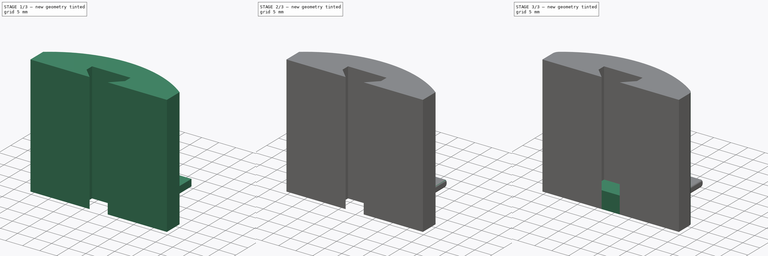
[diagram: build sequence overview — one tinted view per stage of 3, left to right]
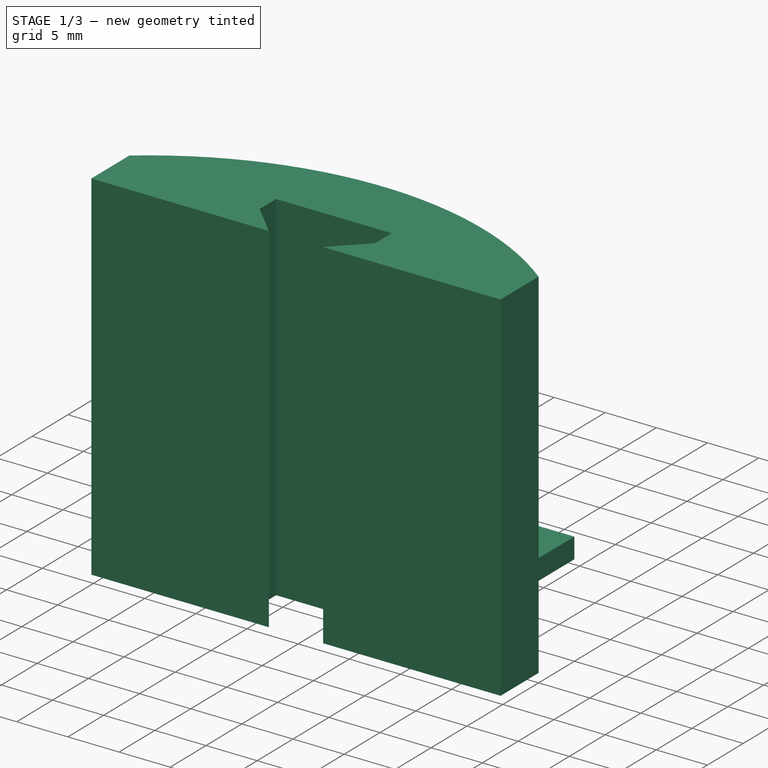
[diagram: stage 1 of 3 — iso view after this stage's code; geometry added in this stage tinted green]
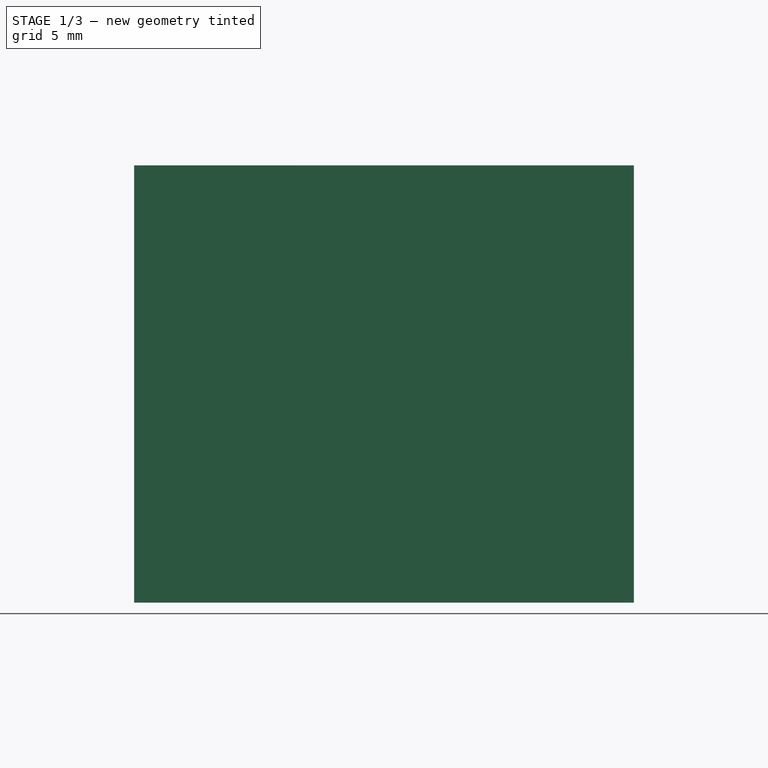
[diagram: stage 1 of 3 — front view after this stage's code; geometry added in this stage tinted green]
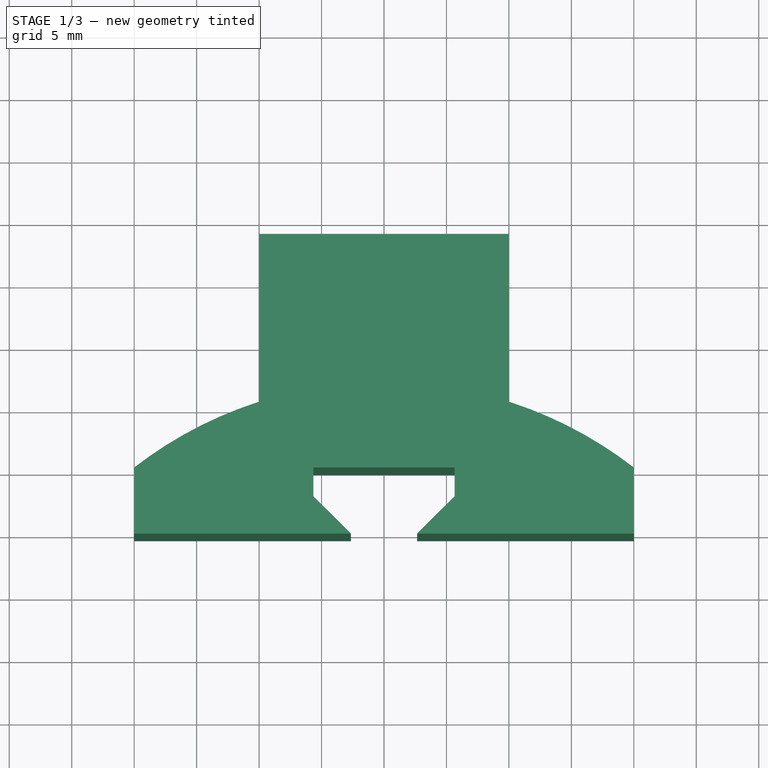
[diagram: stage 1 of 3 — top view after this stage's code; geometry added in this stage tinted green]
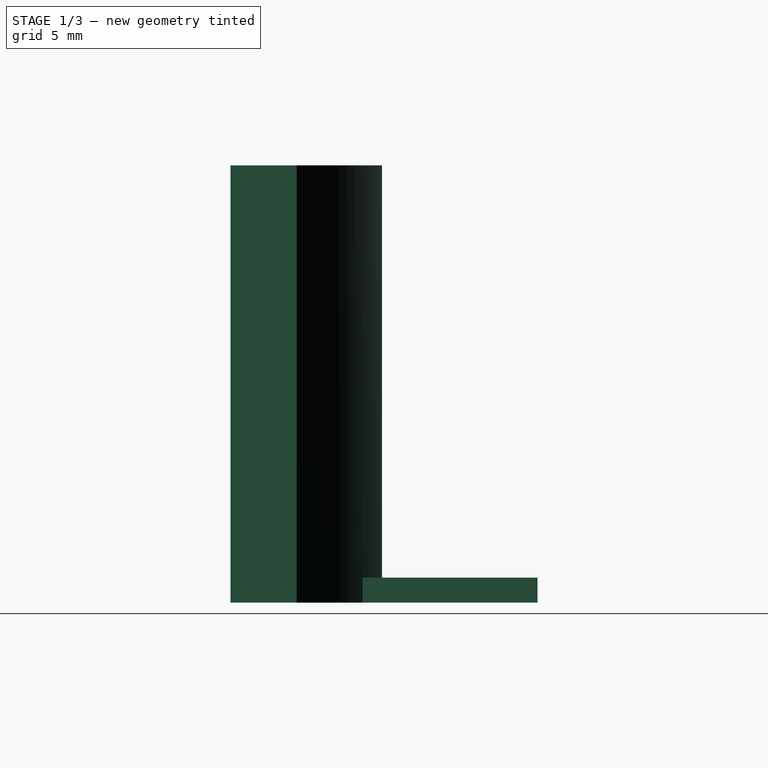
[diagram: stage 1 of 3 — right view after this stage's code; geometry added in this stage tinted green]
FCSTD DOCUMENT  (FreeCAD 0.18R4 (GitTag))
Label: Soporte
License: All rights reserved
LicenseURL: http://en.wikipedia.org/wiki/All_rights_reserved
objects: Sketcher::SketchObject×3, PartDesign::Pad×3, PartDesign::Fillet×3, PartDesign::Body×1
note: 13 computed .brp shape members not serialized (recipe doc carries the construction recipe); baked Part::Feature solids carry a one-line shape summary decoded from their .brp

FEATURE [Sketcher::SketchObject] Sketch
  MapMode = 5
  Support = -> [XY_Plane]
  sketch-geometry (16):
    g0: ArcOfCircle CenterX=3.7294e-12 CenterY=-25.8394 CenterZ=0 NormalX=0 NormalY=0 NormalZ=1 AngleXU=0 Radius=32.6753 StartAngle=0.912103 EndAngle=2.22949
    g1: LineSegment StartX=20 StartY=2.8919e-12 StartZ=0 EndX=20 EndY=-5.3 EndZ=0
    g2: LineSegment StartX=20 StartY=-5.3 StartZ=0 EndX=5.65 EndY=-5.3 EndZ=0
    g3: LineSegment StartX=-20 StartY=-5.3 StartZ=0 EndX=-20 EndY=-2.8857e-12 EndZ=0
    g4: LineSegment StartX=-5.65 StartY=8.145e-13 StartZ=0 EndX=5.65 EndY=8.147e-13 EndZ=0
    g5: LineSegment StartX=5.65 StartY=8.147e-13 StartZ=0 EndX=5.65 EndY=-5.3 EndZ=0
    g6: LineSegment StartX=-5.65 StartY=-5.3 StartZ=0 EndX=-5.65 EndY=8.145e-13 EndZ=0
    g7: LineSegment StartX=-5.65 StartY=-5.3 StartZ=0 EndX=-20 EndY=-5.3 EndZ=0
    g8: LineSegment StartX=-2.65 StartY=-5.3 StartZ=0 EndX=-5.65 EndY=-2.3 EndZ=0
    g9: LineSegment StartX=-5.65 StartY=-2.3 StartZ=0 EndX=-5.65 EndY=-5.3 EndZ=0
    g10: LineSegment StartX=-5.65 StartY=-5.3 StartZ=0 EndX=-2.65 EndY=-5.3 EndZ=0
    g11: Circle [constr] CenterX=-4.15 CenterY=-3.8 CenterZ=0 NormalX=0 NormalY=0 NormalZ=1 AngleXU=0 Radius=2.12132
    g12: LineSegment StartX=5.65 StartY=-5.3 StartZ=0 EndX=5.65 EndY=-2.3 EndZ=0
    g13: LineSegment StartX=5.65 StartY=-2.3 StartZ=0 EndX=2.65 EndY=-5.3 EndZ=0
    g14: LineSegment StartX=2.65 StartY=-5.3 StartZ=0 EndX=5.65 EndY=-5.3 EndZ=0
    g15: Circle [constr] CenterX=4.15 CenterY=-3.8 CenterZ=0 NormalX=0 NormalY=0 NormalZ=1 AngleXU=0 Radius=2.12132
  constraints (43):
    c: Symmetric(g0,g0,g-1)
    c: Distance(g0,g0) = 40
    c: Coincident(g1,g2)
    c: Coincident(g7,g3)
    c: Vertical(g1)
    c: Vertical(g3)
    c: Distance(g3) = 5.3
    c: Coincident(g4,g5)
    c: Coincident(g6,g4)
    c: Vertical(g5)
    c: Symmetric(g4,g4,g-2)
    c: Distance(g4) = 11.3
    c: Coincident(g2,g5)
    c: Tangent(g2,g7)
    c: Coincident(g0,g3)
    c: Equal(g2,g7)
    c: Coincident(g7,g6)
    c: Equal(g1,g3)
    c: Equal(g3,g6)
    c: Equal(g6,g5)
    c: Coincident(g8,g9)
    c: Coincident(g9,g10)
    c: Coincident(g10,g8)
    c: PointOnObject(g8,g11)
    c: PointOnObject(g9,g11)
    c: PointOnObject(g10,g11)
    c: Equal(g9,g10)
    c: Angle(g10,g9) = 1.5708
    c: Distance(g9) = 3
    c: Horizontal(g10)
    c: Coincident(g9,g6)
    c: Coincident(g12,g13)
    c: Coincident(g13,g14)
    c: Coincident(g14,g12)
    c: Equal(g12,g14)
    c: PointOnObject(g12,g15)
    c: PointOnObject(g13,g15)
    c: PointOnObject(g14,g15)
    c: Angle(g12,g14) = 1.5708
    c: Coincident(g12,g2)
    c: Horizontal(g14)
    c: Equal(g14,g10)
    c: Coincident(g0,g1)
FEATURE [PartDesign::Pad] Pad
  Length = 35
  Length2 = 100
  Profile = -> Sketch
  Type = 0
FEATURE [Sketcher::SketchObject] Sketch001
  ExternalGeometry = -> [Pad]
  MapMode = 5
  Placement = pos=(0,0,0) rot=(1,0,0;3.14159rad)
  Support = -> [Pad]
  sketch-geometry (5):
    g0: LineSegment StartX=-10 StartY=-4.27512 StartZ=0 EndX=10 EndY=-4.27512 EndZ=0
    g1: LineSegment StartX=10 StartY=-4.27512 StartZ=0 EndX=10 EndY=-19.2751 EndZ=0
    g2: LineSegment StartX=10 StartY=-19.2751 StartZ=0 EndX=-10 EndY=-19.2751 EndZ=0
    g3: LineSegment StartX=-10 StartY=-19.2751 StartZ=0 EndX=-10 EndY=-4.27512 EndZ=0
    g4: GeomPoint X=0.006199 Y=-6.87158 Z=0
  constraints (10):
    c: Coincident(g0,g1)
    c: Coincident(g1,g2)
    c: Coincident(g2,g3)
    c: Coincident(g3,g0)
    c: Horizontal(g2)
    c: Vertical(g1)
    c: Vertical(g3)
    c: Symmetric(g0,g0,g-2)
    c: Distance(g3) = 15
    c: Distance(g0) = 20
FEATURE [PartDesign::Pad] Pad001
  BaseFeature = -> Pad
  Length = 2
  Length2 = 100
  Profile = -> Sketch001
  Reversed = true
  Type = 0
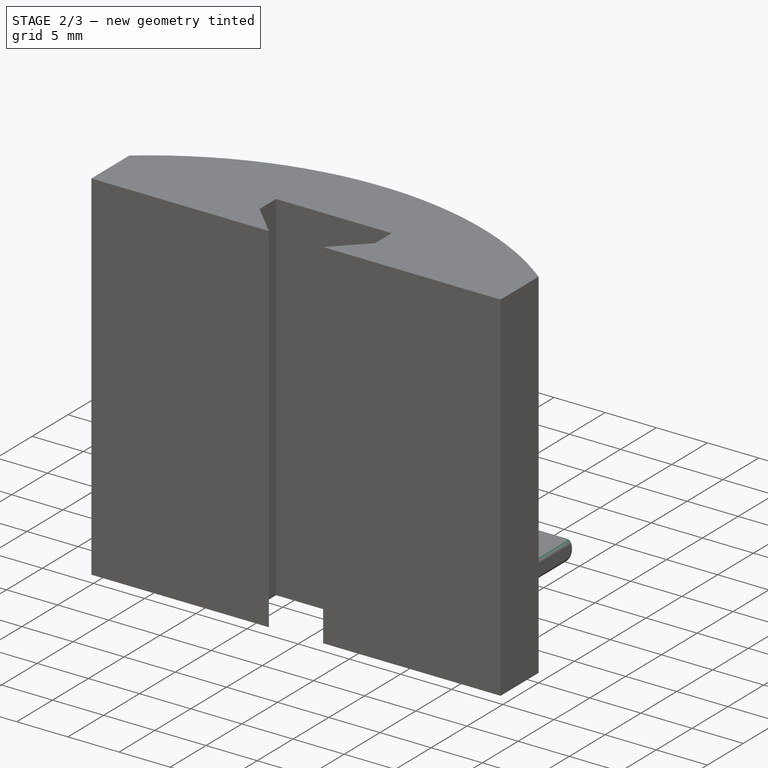
[diagram: stage 2 of 3 — iso view after this stage's code; geometry added in this stage tinted green]
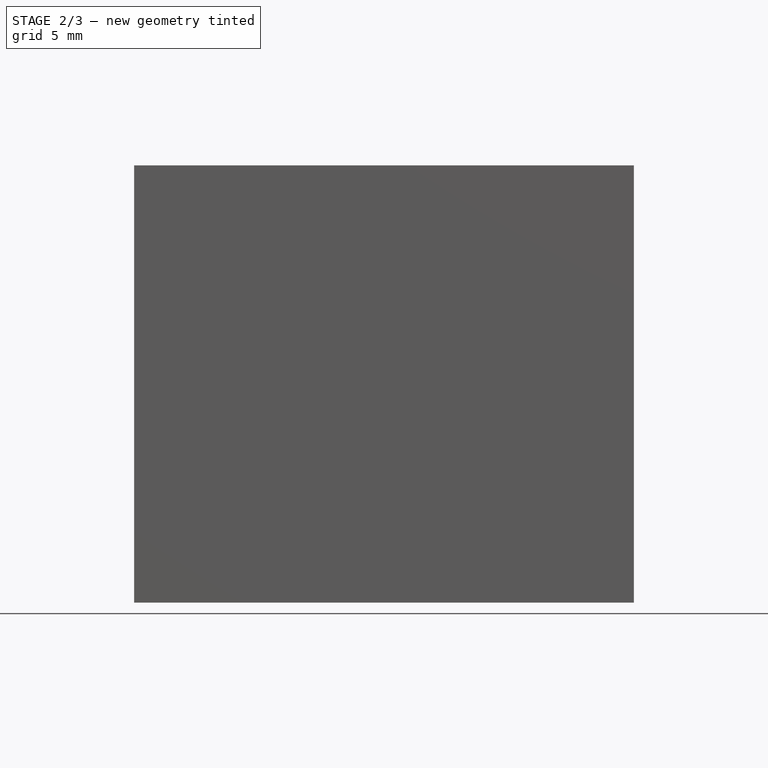
[diagram: stage 2 of 3 — front view after this stage's code; geometry added in this stage tinted green]
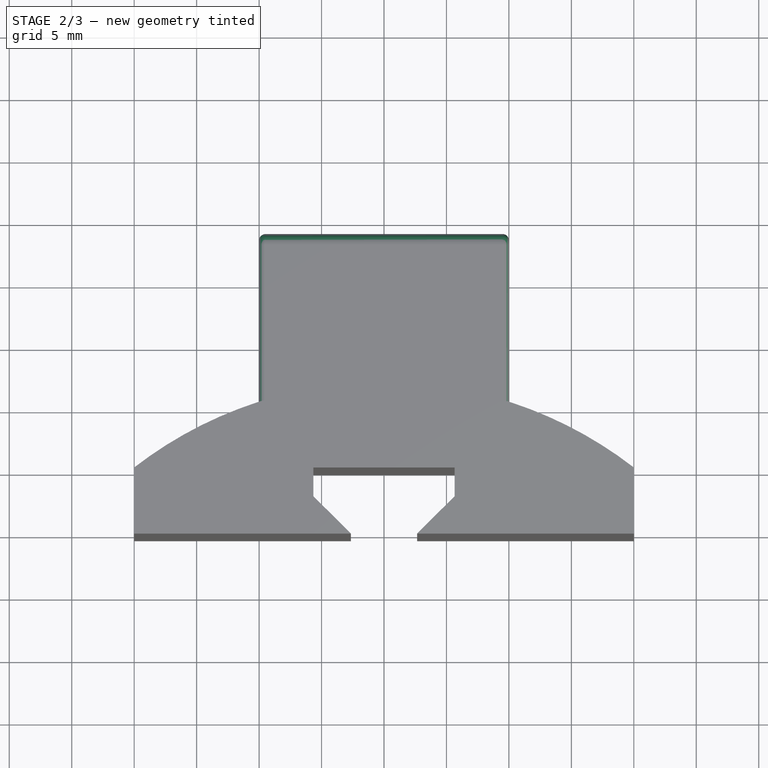
[diagram: stage 2 of 3 — top view after this stage's code; geometry added in this stage tinted green]
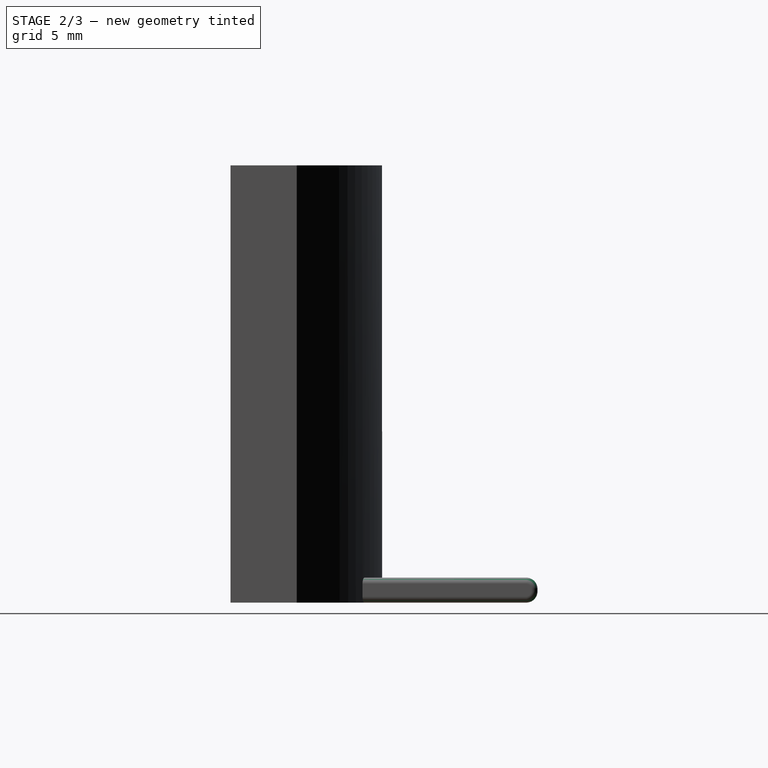
[diagram: stage 2 of 3 — right view after this stage's code; geometry added in this stage tinted green]
FEATURE [PartDesign::Fillet] Fillet
  Base = -> Pad001 [Edge52,Edge49]
  BaseFeature = -> Pad001
  Radius = 0.9
FEATURE [PartDesign::Fillet] Fillet001
  Base = -> Fillet [Edge4,Edge20]
  BaseFeature = -> Fillet
  Radius = 0.5
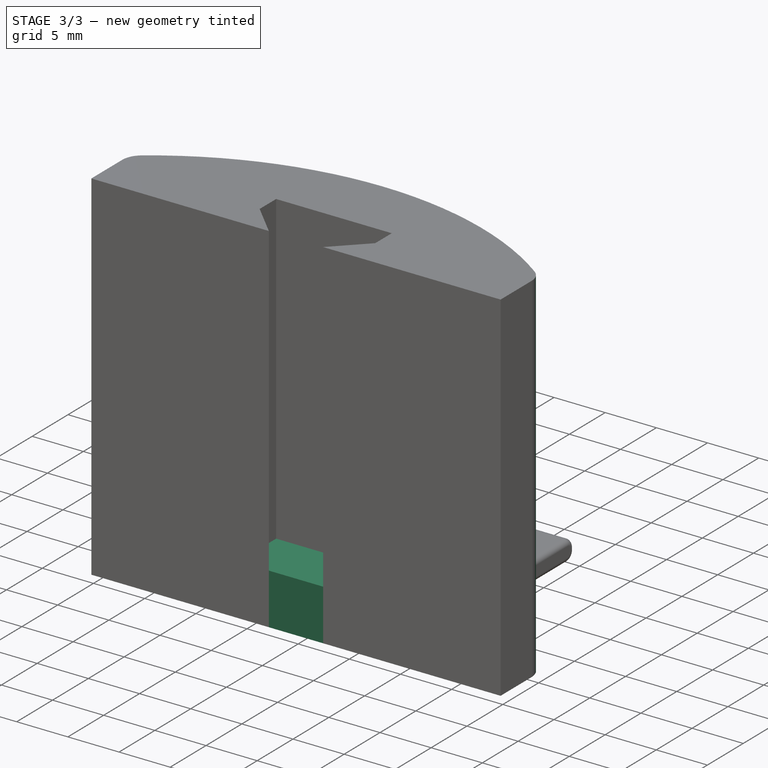
[diagram: stage 3 of 3 — iso view after this stage's code; geometry added in this stage tinted green]
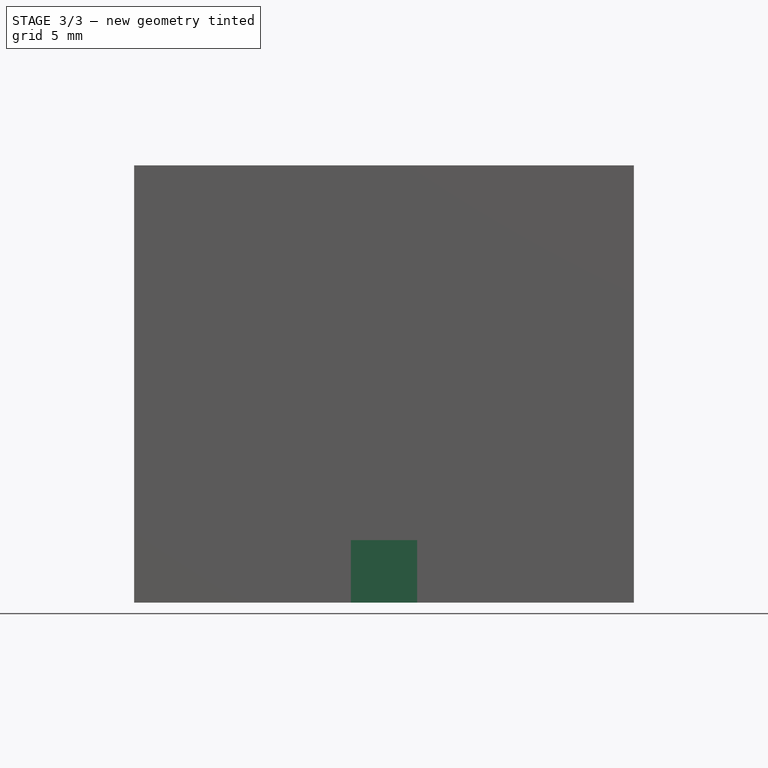
[diagram: stage 3 of 3 — front view after this stage's code; geometry added in this stage tinted green]
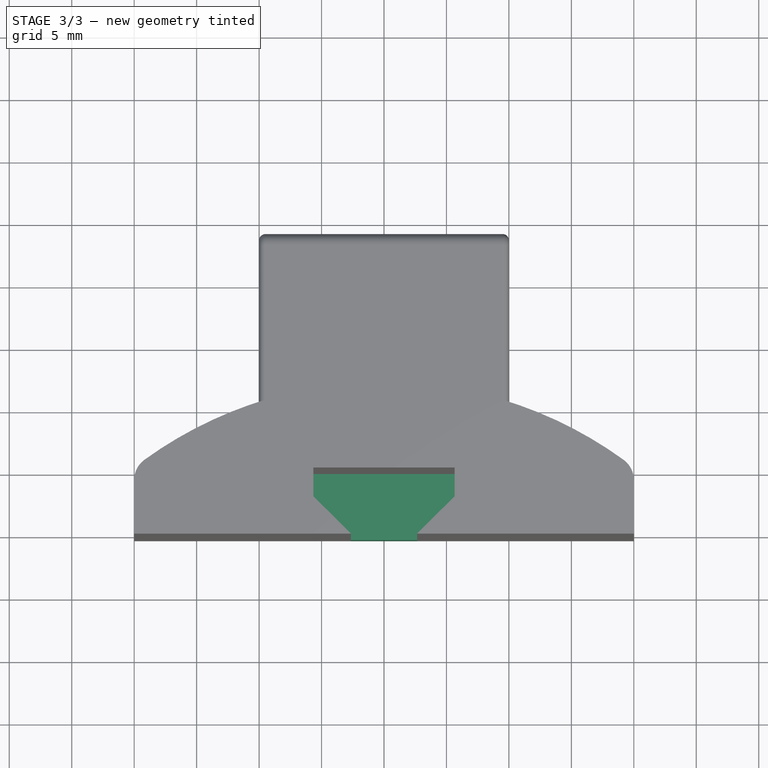
[diagram: stage 3 of 3 — top view after this stage's code; geometry added in this stage tinted green]
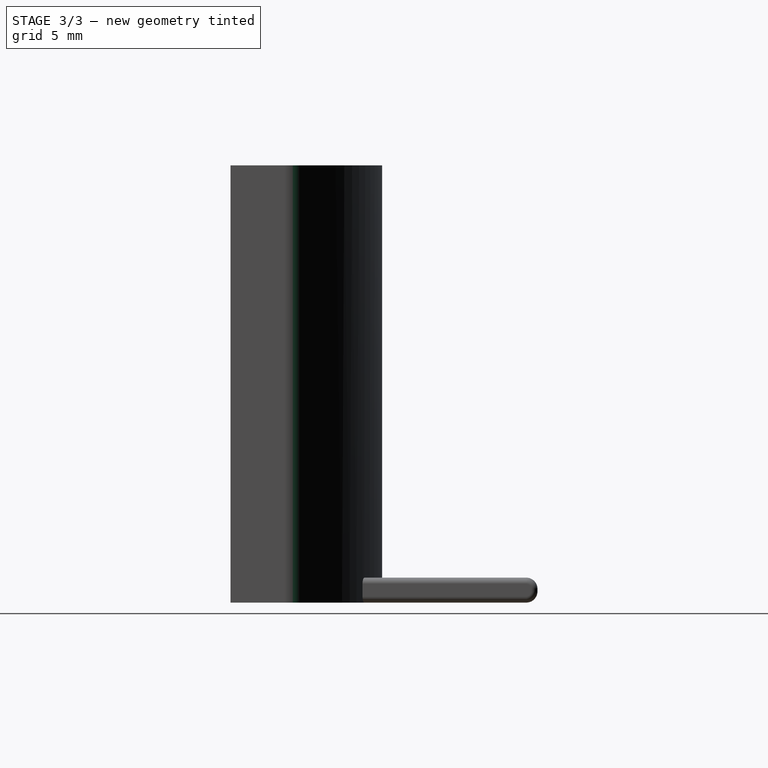
[diagram: stage 3 of 3 — right view after this stage's code; geometry added in this stage tinted green]
FEATURE [PartDesign::Fillet] Fillet002
  Base = -> Fillet001 [Edge15,Edge19]
  BaseFeature = -> Fillet001
  Radius = 2
FEATURE [Sketcher::SketchObject] Sketch002
  MapMode = 5
  Placement = pos=(7.643e-13,-5.3,0) rot=(1,0,0;1.5708rad)
  Support = -> [Fillet002]
  sketch-geometry (4):
    g0: LineSegment StartX=-8.02977 StartY=5 StartZ=0 EndX=8.02977 EndY=5 EndZ=0
    g1: LineSegment StartX=8.02977 StartY=5 StartZ=0 EndX=8.02977 EndY=0 EndZ=0
    g2: LineSegment StartX=8.02977 StartY=0 StartZ=0 EndX=-8.02977 EndY=-7e-16 EndZ=0
    g3: LineSegment StartX=-8.02977 StartY=-7e-16 StartZ=0 EndX=-8.02977 EndY=5 EndZ=0
  constraints (10):
    c: Coincident(g0,g1)
    c: Coincident(g1,g2)
    c: Coincident(g2,g3)
    c: Coincident(g3,g0)
    c: Vertical(g1)
    c: Vertical(g3)
    c: Symmetric(g0,g0,g-2)
    c: Equal(g3,g1)
    c: Distance(g3) = 5
    c: PointOnObject(g1,g-1)
FEATURE [PartDesign::Pad] Pad002
  BaseFeature = -> Fillet002
  Length = 10
  Length2 = 100
  Profile = -> Sketch002
  Reversed = true
  Type = 0
FEATURE [PartDesign::Body] Body
  Group = -> [Sketch,Pad,Sketch001,Pad001,Fillet,Fillet001,Fillet002,Sketch002,Pad002]
  Origin = -> Origin
  Tip = -> Pad002
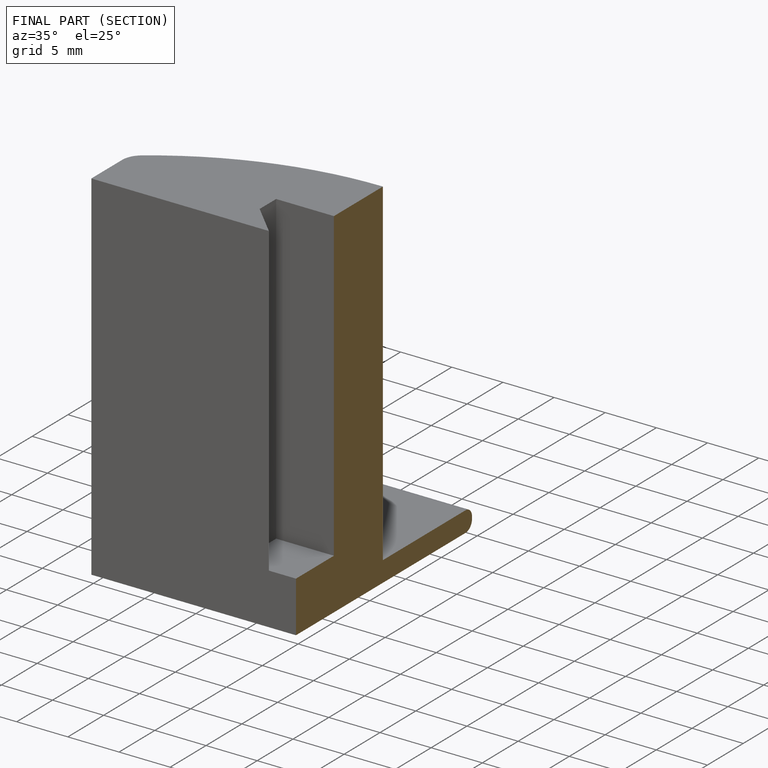
[diagram: finished part — half-section view (interior)]
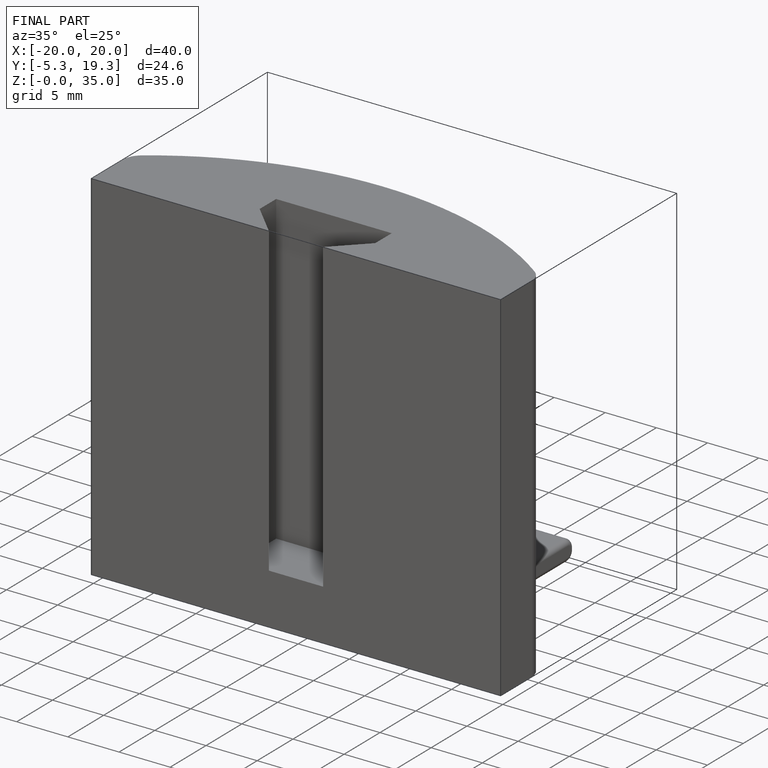
[diagram: finished part — iso view with bounding-box wireframe]
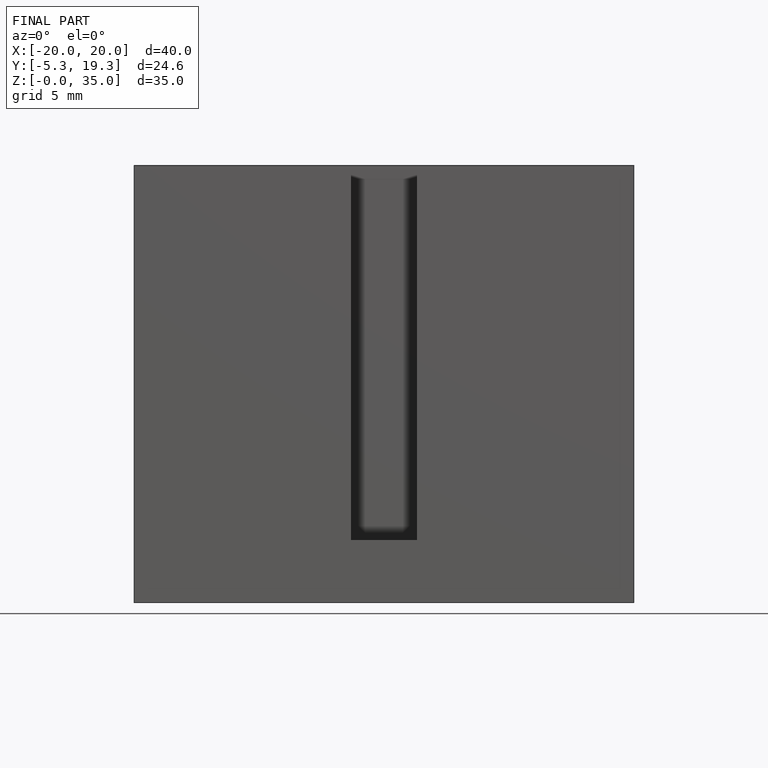
[diagram: finished part — front view with bounding-box wireframe]
